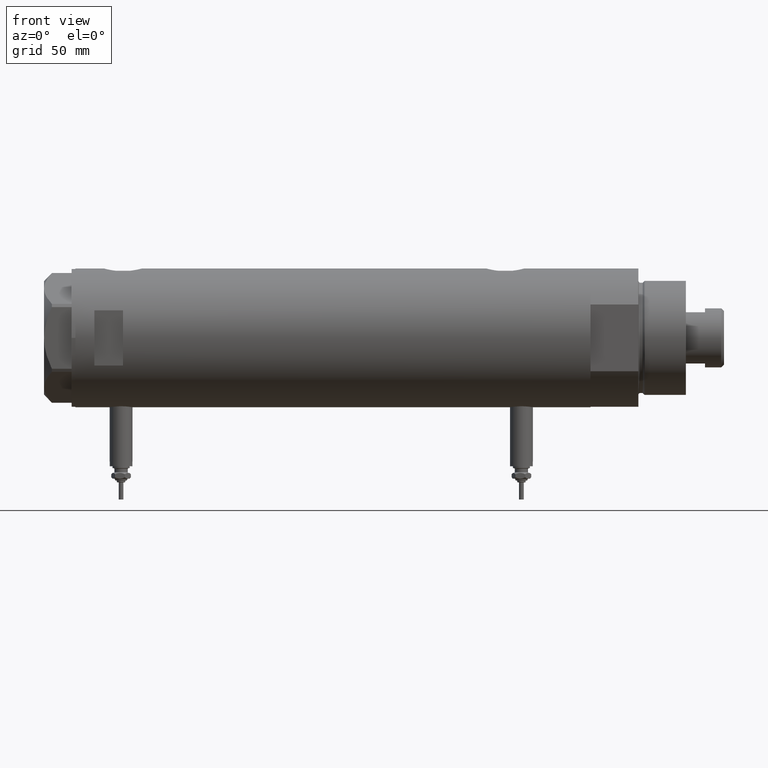
[diagram: clean part render]
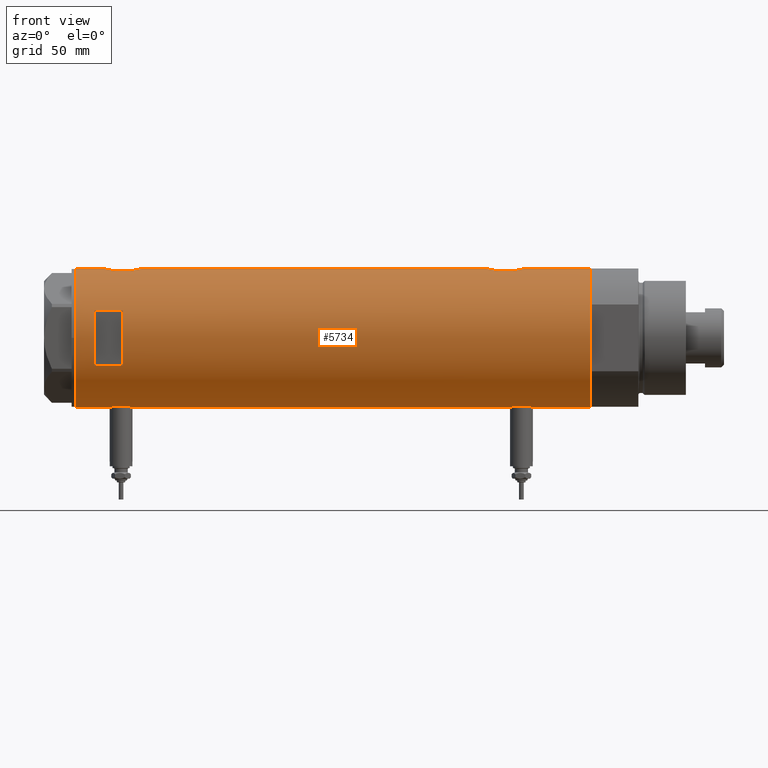
[diagram: same view with one face highlighted and labeled with its STEP entity id]
A machine part, front view. The second image highlights one B-rep face of the part: STEP entity #5734.
In plain terms, the highlighted cylindrical surface (partial cylindrical patch) has radius 36.5 mm, axis along (-1, -0, 0).
Its self-contained STEP definition (entity closure, byte-faithful):
#10 = CARTESIAN_POINT ( 'NONE',  ( 36.12724769814495573, -5.207618053557754756, 118.9406412048846846 ) ) ;
#54 = EDGE_CURVE ( 'NONE', #1480, #5323, #421, .T. ) ;
#56 = VECTOR ( 'NONE', #5036, 1000.000000000000000 ) ;
#58 = CARTESIAN_POINT ( 'NONE',  ( -36.50000000000000000, 4.469960816887838430E-15, -135.4000000000000057 ) ) ;
#76 = CARTESIAN_POINT ( 'NONE',  ( -36.50000000000000000, 4.469960816887838430E-15, -135.4000000000000057 ) ) ;
#79 = EDGE_CURVE ( 'NONE', #1117, #3911, #4368, .T. ) ;
#86 = CARTESIAN_POINT ( 'NONE',  ( 35.52320828895289395, -8.411622242316134646, 104.9022713405538667 ) ) ;
#87 = CARTESIAN_POINT ( 'NONE',  ( -36.39621039793029666, -2.776267550998806843, 117.0143075310677716 ) ) ;
#92 = CARTESIAN_POINT ( 'NONE',  ( 35.72742963626381396, -7.471989379615407323, -97.25062260412774151 ) ) ;
#99 = DIRECTION ( 'NONE',  ( -0.000000000000000000, 0.000000000000000000, -1.000000000000000000 ) ) ;
#109 = CARTESIAN_POINT ( 'NONE',  ( -35.96816095843705341, -6.208699946936198977, 110.5750362287220838 ) ) ;
#147 = CARTESIAN_POINT ( 'NONE',  ( 36.18850502651835654, -4.779575967213809840, -99.39779152890149305 ) ) ;
#172 = CARTESIAN_POINT ( 'NONE',  ( -36.26616882068471170, -4.135065845178865551, 116.1041505594009635 ) ) ;
#180 = CARTESIAN_POINT ( 'NONE',  ( -36.01675918113430441, -5.920026275461277798, -101.1143955651789383 ) ) ;
#186 = VERTEX_POINT ( 'NONE', #3992 ) ;
#216 = CARTESIAN_POINT ( 'NONE',  ( -36.19599073318030236, -4.702920041824403263, -94.97846168323421523 ) ) ;
#233 = EDGE_CURVE ( 'NONE', #3409, #4420, #5372, .T. ) ;
#330 = CARTESIAN_POINT ( 'NONE',  ( -36.43335814606993495, -2.212659578761325463, -93.25123600830492876 ) ) ;
#338 = CARTESIAN_POINT ( 'NONE',  ( 36.21540437201188922, -4.554727782332258279, 119.3059762908862353 ) ) ;
#373 = VECTOR ( 'NONE', #2858, 1000.000000000000000 ) ;
#407 = CARTESIAN_POINT ( 'NONE',  ( 36.50000000000000000, 0.000000000000000000, -135.4000000000000057 ) ) ;
#421 = B_SPLINE_CURVE_WITH_KNOTS ( 'NONE', 3,
 ( #3735, #511, #992, #4658, #3817, #2430, #1085, #5563, #1931, #3766, #5532, #3252, #5201, #599, #1900, #532, #5079, #2457 ),
 .UNSPECIFIED., .F., .F.,
 ( 4, 2, 2, 2, 2, 2, 2, 2, 4 ),
 ( 0.01190956515753145012, 0.01339852714138290227, 0.01488748912523435441, 0.01637645110908580656, 0.01712093210101153090, 0.01786541309293725871, 0.01935437507678870739, 0.02084333706064015260, 0.02382126102834301526 ),
 .UNSPECIFIED. ) ;
#440 = CARTESIAN_POINT ( 'NONE',  ( 36.50000000000000000, 0.000000000000000000, -135.4000000000000057 ) ) ;
#446 = CARTESIAN_POINT ( 'NONE',  ( -35.98855750525641639, -6.088954600884530777, 109.9756977384983543 ) ) ;
#511 = CARTESIAN_POINT ( 'NONE',  ( 36.50000000000000711, -0.4962708696651116913, -80.60000000000000853 ) ) ;
#529 = CARTESIAN_POINT ( 'NONE',  ( 35.39794035667548400, -8.909777761736840773, 105.7504584091054767 ) ) ;
#532 = CARTESIAN_POINT ( 'NONE',  ( 35.52323553852023963, -8.411295122831250026, -85.10247607048908947 ) ) ;
#536 = EDGE_CURVE ( 'NONE', #186, #4674, #3697, .T. ) ;
#575 = CIRCLE ( 'NONE', #1357, 36.50000000000000000 ) ;
#595 = CARTESIAN_POINT ( 'NONE',  ( -36.21356728133255842, -4.566014386638764577, 115.6726266076474587 ) ) ;
#599 = CARTESIAN_POINT ( 'NONE',  ( 35.79638309643555516, -7.141827709208434349, -83.58298073030449871 ) ) ;
#607 = CARTESIAN_POINT ( 'NONE',  ( 35.29999999999999716, -9.282241108697837362, 106.6797849524523656 ) ) ;
#626 = EDGE_CURVE ( 'NONE', #1997, #699, #5885, .T. ) ;
#627 = CARTESIAN_POINT ( 'NONE',  ( -36.44621655743049615, -2.016281777336074832, -105.0298297669911562 ) ) ;
#638 = FACE_OUTER_BOUND ( 'NONE', #2682, .T. ) ;
#648 = CARTESIAN_POINT ( 'NONE',  ( -36.14410773716529235, -5.085921866747754372, 115.0383587842047035 ) ) ;
#655 = CARTESIAN_POINT ( 'NONE',  ( -36.36635911126388265, -3.125815113635437292, -104.5160560040790330 ) ) ;
#666 = DIRECTION ( 'NONE',  ( 1.000000000000000000, 0.000000000000000000, 0.000000000000000000 ) ) ;
#687 = CARTESIAN_POINT ( 'NONE',  ( -36.30107494031872051, -3.820993528321233068, -94.13693846463692694 ) ) ;
#699 = VERTEX_POINT ( 'NONE', #5219 ) ;
#711 = CARTESIAN_POINT ( 'NONE',  ( -36.02823773219768810, -5.849994928883552880, -101.3095510148563960 ) ) ;
#743 = CARTESIAN_POINT ( 'NONE',  ( -36.14410773716529235, -5.085921866747754372, -95.46164121579526807 ) ) ;
#791 = DIRECTION ( 'NONE',  ( 0.000000000000000000, 0.000000000000000000, 1.000000000000000000 ) ) ;
#837 = CARTESIAN_POINT ( 'NONE',  ( -36.06543684817881257, -5.617774235967367247, 114.1695444797170182 ) ) ;
#871 = CARTESIAN_POINT ( 'NONE',  ( -36.36635911126388265, -3.125815113635437292, 105.9839439959209955 ) ) ;
#899 = CARTESIAN_POINT ( 'NONE',  ( -36.01675918113430441, -5.920026275461277798, 109.3856044348210759 ) ) ;
#906 = CARTESIAN_POINT ( 'NONE',  ( 35.79638309643555516, -7.141827709208434349, 117.4170192696954445 ) ) ;
#988 = CARTESIAN_POINT ( 'NONE',  ( -36.43335814606993495, -2.212659578761325463, 117.2487639916951139 ) ) ;
#992 = CARTESIAN_POINT ( 'NONE',  ( 36.48988302519020266, -0.9927202255321166957, -80.63673010588695433 ) ) ;
#1011 = CARTESIAN_POINT ( 'NONE',  ( 35.69273631926343882, -7.635692914629149008, 103.9379980434851234 ) ) ;
#1039 = VECTOR ( 'NONE', #1897, 1000.000000000000000 ) ;
#1045 = CARTESIAN_POINT ( 'NONE',  ( 36.41856252531823657, -2.482507212621166470, 100.7004348715349380 ) ) ;
#1051 = CARTESIAN_POINT ( 'NONE',  ( 36.00068527486601511, -6.030855700422090848, -98.59201327127351533 ) ) ;
#1085 = CARTESIAN_POINT ( 'NONE',  ( 36.29582892817134621, -3.881628320031159873, -81.37065565465007921 ) ) ;
#1089 = CARTESIAN_POINT ( 'NONE',  ( -36.30176144752229561, -3.814344296723636951, -104.0680170195025624 ) ) ;
#1114 = CARTESIAN_POINT ( 'NONE',  ( -36.01639592019625979, -5.922235714778421034, -97.09203197573086186 ) ) ;
#1117 = VERTEX_POINT ( 'NONE', #4386 ) ;
#1152 = FACE_BOUND ( 'NONE', #3325, .T. ) ;
#1191 = VERTEX_POINT ( 'NONE', #607 ) ;
#1194 = ORIENTED_EDGE ( 'NONE', *, *, #536, .T. ) ;
#1227 = EDGE_CURVE ( 'NONE', #5914, #1997, #1709, .T. ) ;
#1322 = DIRECTION ( 'NONE',  ( -0.000000000000000000, -0.000000000000000000, -1.000000000000000000 ) ) ;
#1330 = CARTESIAN_POINT ( 'NONE',  ( -36.44621655743049615, -2.016281777336074832, 105.4701702330088438 ) ) ;
#1353 = DIRECTION ( 'NONE',  ( 0.000000000000000000, 0.000000000000000000, 1.000000000000000000 ) ) ;
#1357 = AXIS2_PLACEMENT_3D ( 'NONE', #5039, #1353, #1382 ) ;
#1364 = DIRECTION ( 'NONE',  ( 1.000000000000000000, 0.000000000000000000, 0.000000000000000000 ) ) ;
#1370 = CARTESIAN_POINT ( 'NONE',  ( 14.49137674618942739, -33.50000000000000000, 125.3999999999999773 ) ) ;
#1378 = CARTESIAN_POINT ( 'NONE',  ( 35.29999999999999716, -9.282241108697837362, -135.4000000000000057 ) ) ;
#1382 = DIRECTION ( 'NONE',  ( -1.000000000000000000, 0.000000000000000000, 0.000000000000000000 ) ) ;
#1396 = CARTESIAN_POINT ( 'NONE',  ( 35.39807338191549491, -8.909271871950329214, 115.0508038273278402 ) ) ;
#1416 = CARTESIAN_POINT ( 'NONE',  ( -36.02782481185206365, -5.852531070448506512, 113.6027700895219112 ) ) ;
#1426 = DIRECTION ( 'NONE',  ( 0.000000000000000000, 0.000000000000000000, 1.000000000000000000 ) ) ;
#1435 = CARTESIAN_POINT ( 'NONE',  ( 14.49137674618942739, -33.50000000000000000, -135.4000000000000057 ) ) ;
#1451 = CARTESIAN_POINT ( 'NONE',  ( 35.79656810172926384, -7.133411935499478496, -97.61254878557674886 ) ) ;
#1468 = CARTESIAN_POINT ( 'NONE',  ( 35.29999999999999716, -9.282241108697837362, -86.87978495245235422 ) ) ;
#1474 = CARTESIAN_POINT ( 'NONE',  ( 35.83108131285856501, -6.958268797611358636, 103.2136921662717697 ) ) ;
#1477 = CARTESIAN_POINT ( 'NONE',  ( 36.29527920868844859, -3.886508670267145416, -99.82716275830860297 ) ) ;
#1480 = VERTEX_POINT ( 'NONE', #4275 ) ;
#1498 = CARTESIAN_POINT ( 'NONE',  ( 36.34184199234172041, -3.427106516421255744, 100.9925908631996663 ) ) ;
#1513 = VERTEX_POINT ( 'NONE', #3597 ) ;
#1534 = AXIS2_PLACEMENT_3D ( 'NONE', #3623, #5021, #1364 ) ;
#1539 = CARTESIAN_POINT ( 'NONE',  ( -36.50000000000000000, 4.469960816887838430E-15, -135.4000000000000057 ) ) ;
#1571 = CARTESIAN_POINT ( 'NONE',  ( -36.26692673949090562, -4.128477002029503851, -103.8099998743216474 ) ) ;
#1618 = VECTOR ( 'NONE', #791, 1000.000000000000000 ) ;
#1651 = CARTESIAN_POINT ( 'NONE',  ( 36.50000000000000000, 0.000000000000000000, 100.4000000000000057 ) ) ;
#1690 = CARTESIAN_POINT ( 'NONE',  ( 36.50000000000000000, 0.000000000000000000, -100.5999999999999801 ) ) ;
#1709 = CIRCLE ( 'NONE', #5059, 36.50000000000000000 ) ;
#1729 = CARTESIAN_POINT ( 'NONE',  ( 36.00092304812866217, -6.029438422680412302, 118.3930815557365008 ) ) ;
#1757 = CARTESIAN_POINT ( 'NONE',  ( -36.39621039793029666, -2.776267550998806843, -93.48569246893222839 ) ) ;
#1782 = CARTESIAN_POINT ( 'NONE',  ( -36.49315367594273596, -0.8144497809045447845, 105.1896021444524507 ) ) ;
#1811 = CARTESIAN_POINT ( 'NONE',  ( -36.06605150775667568, -5.613853192123348101, 108.6223431172745961 ) ) ;
#1821 = CARTESIAN_POINT ( 'NONE',  ( 36.44931971524465553, -1.985988150549293341, 120.2136686053176220 ) ) ;
#1839 = CARTESIAN_POINT ( 'NONE',  ( -35.96794010939611752, -6.209972807992079069, 112.2155554899135836 ) ) ;
#1897 = DIRECTION ( 'NONE',  ( 0.000000000000000000, 0.000000000000000000, 1.000000000000000000 ) ) ;
#1900 = CARTESIAN_POINT ( 'NONE',  ( 35.72583162417570435, -7.484316398521980496, -83.94957356280495731 ) ) ;
#1925 = CARTESIAN_POINT ( 'NONE',  ( 35.72742963626381396, -7.471989379615407323, 103.7493773958722585 ) ) ;
#1931 = CARTESIAN_POINT ( 'NONE',  ( 36.18674680775578167, -4.776679548204626258, -81.81107683068751157 ) ) ;
#1942 = DIRECTION ( 'NONE',  ( 1.000000000000000000, 0.000000000000000000, 0.000000000000000000 ) ) ;
#1986 = CARTESIAN_POINT ( 'NONE',  ( 36.44881677724178104, -1.995085670027227032, -100.4118034536946169 ) ) ;
#1997 = VERTEX_POINT ( 'NONE', #5913 ) ;
#2012 = CARTESIAN_POINT ( 'NONE',  ( -36.50000000000000000, 1.603939656238031057E-15, 117.6500000000000057 ) ) ;
#2022 = CARTESIAN_POINT ( 'NONE',  ( -35.96816095843705341, -6.208699946936198977, -99.92496377127785934 ) ) ;
#2043 = EDGE_CURVE ( 'NONE', #4626, #2565, #3733, .T. ) ;
#2052 = CARTESIAN_POINT ( 'NONE',  ( -35.98821803976956346, -6.090959022952117330, -97.68426116850579888 ) ) ;
#2101 = EDGE_CURVE ( 'NONE', #2565, #3911, #3662, .T. ) ;
#2106 = CARTESIAN_POINT ( 'NONE',  ( -36.36656776002988778, -3.137002187003158582, -93.67863590726369694 ) ) ;
#2111 = CIRCLE ( 'NONE', #1534, 36.50000000000000000 ) ;
#2117 = DIRECTION ( 'NONE',  ( 0.000000000000000000, 0.000000000000000000, 1.000000000000000000 ) ) ;
#2279 = CARTESIAN_POINT ( 'NONE',  ( -14.49137674618942739, -33.50000000000000000, -135.4000000000000057 ) ) ;
#2293 = CARTESIAN_POINT ( 'NONE',  ( 35.93373217836897737, -6.415110096330620237, 118.0870426635508892 ) ) ;
#2312 = CARTESIAN_POINT ( 'NONE',  ( -36.19666146462960654, -4.704890678739094945, 107.2657014048921553 ) ) ;
#2339 = CARTESIAN_POINT ( 'NONE',  ( 35.29999999999999716, -9.282241108697837362, 114.1202150475476316 ) ) ;
#2342 = CARTESIAN_POINT ( 'NONE',  ( 35.39794035667548400, -8.909777761736840773, -95.24954159089452332 ) ) ;
#2359 = EDGE_CURVE ( 'NONE', #186, #4645, #4892, .T. ) ;
#2364 = CARTESIAN_POINT ( 'NONE',  ( -36.16125812922425098, -4.962923794285024393, 115.2044608591076269 ) ) ;
#2369 = CARTESIAN_POINT ( 'NONE',  ( 35.83108131285856501, -6.958268797611358636, -97.78630783372824453 ) ) ;
#2396 = CARTESIAN_POINT ( 'NONE',  ( 36.00068527486601511, -6.030855700422090848, 102.4079867287264705 ) ) ;
#2426 = CARTESIAN_POINT ( 'NONE',  ( -36.46417279006304568, -1.628689148039109247, 117.4375393869382123 ) ) ;
#2430 = CARTESIAN_POINT ( 'NONE',  ( 36.34247810649306132, -3.420510937483959513, -81.19013481598273074 ) ) ;
#2450 = EDGE_CURVE ( 'NONE', #4420, #5263, #3820, .T. ) ;
#2451 = CARTESIAN_POINT ( 'NONE',  ( -36.50000000000000000, 4.469960816887838430E-15, -135.4000000000000057 ) ) ;
#2452 = CARTESIAN_POINT ( 'NONE',  ( -36.47262891311153510, -1.427622242603855396, 117.4882462921170259 ) ) ;
#2457 = CARTESIAN_POINT ( 'NONE',  ( 35.29999999999999716, -9.282241108697837362, -86.87978495245235422 ) ) ;
#2462 = CARTESIAN_POINT ( 'NONE',  ( -36.09582946723050867, -5.421573071064194060, -102.2360827837048731 ) ) ;
#2490 = ORIENTED_EDGE ( 'NONE', *, *, #626, .F. ) ;
#2491 = CARTESIAN_POINT ( 'NONE',  ( -36.35061318816141096, -3.303361544904982239, -104.4096404194302039 ) ) ;
#2524 = CARTESIAN_POINT ( 'NONE',  ( -35.98855750525641639, -6.088954600884530777, -100.5243022615016883 ) ) ;
#2550 = CARTESIAN_POINT ( 'NONE',  ( -36.19666146462960654, -4.704890678739094945, -103.2342985951078447 ) ) ;
#2559 = CARTESIAN_POINT ( 'NONE',  ( -36.50000000000000000, 1.603939656238031057E-15, 117.6500000000000057 ) ) ;
#2565 = VERTEX_POINT ( 'NONE', #3938 ) ;
#2571 = AXIS2_PLACEMENT_3D ( 'NONE', #3127, #4956, #3160 ) ;
#2572 = ORIENTED_EDGE ( 'NONE', *, *, #5042, .F. ) ;
#2612 = EDGE_CURVE ( 'NONE', #1513, #2982, #3883, .T. ) ;
#2668 = CARTESIAN_POINT ( 'NONE',  ( -36.50000000000000000, 1.603939656238031057E-15, -92.84999999999999432 ) ) ;
#2682 = EDGE_LOOP ( 'NONE', ( #4008, #5018, #3773, #4907, #5839, #4838, #5515, #3978, #2906, #3108, #1194, #3121, #4607, #4660, #2725, #5384 ) ) ;
#2695 = VECTOR ( 'NONE', #4462, 1000.000000000000000 ) ;
#2713 = CARTESIAN_POINT ( 'NONE',  ( -36.35061318816141096, -3.303361544904982239, 106.0903595805698245 ) ) ;
#2721 = CARTESIAN_POINT ( 'NONE',  ( 35.52323553852023963, -8.411295122831250026, 115.8975239295108253 ) ) ;
#2725 = ORIENTED_EDGE ( 'NONE', *, *, #4841, .F. ) ;
#2738 = CARTESIAN_POINT ( 'NONE',  ( -35.99695583620881933, -6.039273428153905776, 109.7777555501224214 ) ) ;
#2799 = CARTESIAN_POINT ( 'NONE',  ( 35.29999999999999716, -9.282241108697837362, -135.4000000000000057 ) ) ;
#2850 = CARTESIAN_POINT ( 'NONE',  ( 35.93363298843768661, -6.415574104180976178, 102.7134852711111108 ) ) ;
#2858 = DIRECTION ( 'NONE',  ( 0.000000000000000000, 0.000000000000000000, 1.000000000000000000 ) ) ;
#2861 = B_SPLINE_CURVE_WITH_KNOTS ( 'NONE', 3,
 ( #4653, #529, #86, #1011, #1925, #3761, #1474, #2850, #2396, #4683, #3786, #5612, #1498, #1045, #2880, #3514, #2997, #1651 ),
 .UNSPECIFIED., .F., .F.,
 ( 4, 2, 2, 2, 2, 2, 2, 2, 4 ),
 ( -0.01189883390545606531, -0.008924125429092034240, -0.008180448310001031675, -0.007436771190910029979, -0.005949416952728023983, -0.004462062714546017987, -0.002974708476364010257, -0.001487354238182005128, 1.734723475976807094E-18 ),
 .UNSPECIFIED. ) ;
#2874 = EDGE_CURVE ( 'NONE', #1191, #4645, #5560, .T. ) ;
#2880 = CARTESIAN_POINT ( 'NONE',  ( 36.44881677724178104, -1.995085670027227032, 100.5881965463053263 ) ) ;
#2881 = CARTESIAN_POINT ( 'NONE',  ( -36.50000000000001421, -0.4136690418839317762, 117.6500000000000341 ) ) ;
#2885 = CARTESIAN_POINT ( 'NONE',  ( 36.12792682573228831, -5.214735277442335004, -99.14693117988699100 ) ) ;
#2906 = ORIENTED_EDGE ( 'NONE', *, *, #2874, .T. ) ;
#2910 = CARTESIAN_POINT ( 'NONE',  ( -36.19599073318030236, -4.702920041824403263, 115.5215383167658132 ) ) ;
#2914 = CARTESIAN_POINT ( 'NONE',  ( 35.69273631926343882, -7.635692914629149008, -97.06200195651487661 ) ) ;
#2934 = CARTESIAN_POINT ( 'NONE',  ( -36.49297138689434661, -0.8222528563518530786, 117.6093311205343781 ) ) ;
#2982 = VERTEX_POINT ( 'NONE', #2668 ) ;
#2997 = CARTESIAN_POINT ( 'NONE',  ( 36.50000000000000711, -0.5031001875915692700, 100.4000000000000341 ) ) ;
#3030 = CARTESIAN_POINT ( 'NONE',  ( -36.40915499150419521, -2.580495338846545472, -104.7960501335547860 ) ) ;
#3091 = EDGE_CURVE ( 'NONE', #3271, #5914, #5521, .T. ) ;
#3108 = ORIENTED_EDGE ( 'NONE', *, *, #2359, .F. ) ;
#3121 = ORIENTED_EDGE ( 'NONE', *, *, #3985, .F. ) ;
#3127 = CARTESIAN_POINT ( 'NONE',  ( 0.000000000000000000, 0.000000000000000000, -135.4000000000000057 ) ) ;
#3160 = DIRECTION ( 'NONE',  ( 1.000000000000000000, 0.000000000000000000, 0.000000000000000000 ) ) ;
#3163 = CARTESIAN_POINT ( 'NONE',  ( -36.40915499150419521, -2.580495338846545472, 105.7039498664452566 ) ) ;
#3196 = CARTESIAN_POINT ( 'NONE',  ( -36.46614432713124643, -1.622933015999963313, 105.3503340261315202 ) ) ;
#3247 = CARTESIAN_POINT ( 'NONE',  ( -36.50000000000000000, 4.469960493350315609E-15, 105.1499999999999915 ) ) ;
#3252 = CARTESIAN_POINT ( 'NONE',  ( 36.00092304812866217, -6.029438422680412302, -82.60691844426345654 ) ) ;
#3265 = VECTOR ( 'NONE', #1426, 1000.000000000000000 ) ;
#3271 = VERTEX_POINT ( 'NONE', #4756 ) ;
#3281 = CARTESIAN_POINT ( 'NONE',  ( 36.41856252531823657, -2.482507212621166470, -100.2995651284649909 ) ) ;
#3325 = EDGE_LOOP ( 'NONE', ( #2572, #2490, #3481, #4033 ) ) ;
#3331 = VECTOR ( 'NONE', #1322, 1000.000000000000000 ) ;
#3347 = EDGE_CURVE ( 'NONE', #4626, #1513, #4648, .T. ) ;
#3404 = CARTESIAN_POINT ( 'NONE',  ( -35.99659093586380010, -6.041447834568799635, -97.48577587985174375 ) ) ;
#3409 = VERTEX_POINT ( 'NONE', #4876 ) ;
#3430 = CARTESIAN_POINT ( 'NONE',  ( -36.21356728133255842, -4.566014386638764577, -94.82737339235254126 ) ) ;
#3463 = CARTESIAN_POINT ( 'NONE',  ( -36.39558535855674393, -2.764807686268001774, -104.7089411854560979 ) ) ;
#3481 = ORIENTED_EDGE ( 'NONE', *, *, #1227, .F. ) ;
#3495 = CARTESIAN_POINT ( 'NONE',  ( -35.96087392089862789, -6.250243747806517369, -98.69082509223817112 ) ) ;
#3514 = CARTESIAN_POINT ( 'NONE',  ( 36.48960339336947101, -1.002724032967601708, 100.4377513402650379 ) ) ;
#3555 = CARTESIAN_POINT ( 'NONE',  ( -36.50000000000000000, 1.603939656238031057E-15, -92.84999999999999432 ) ) ;
#3597 = CARTESIAN_POINT ( 'NONE',  ( -36.50000000000000000, 4.469960493350315609E-15, -105.3499999999999943 ) ) ;
#3622 = CARTESIAN_POINT ( 'NONE',  ( -36.49297138689434661, -0.8222528563518530786, -92.89066887946567874 ) ) ;
#3623 = CARTESIAN_POINT ( 'NONE',  ( 0.000000000000000000, 0.000000000000000000, 135.4000000000000057 ) ) ;
#3629 = CARTESIAN_POINT ( 'NONE',  ( 36.41918031349423757, -2.473644131148923009, 120.1018834546319027 ) ) ;
#3647 = CARTESIAN_POINT ( 'NONE',  ( -36.02823773219768810, -5.849994928883552880, 109.1904489851435613 ) ) ;
#3662 = LINE ( 'NONE', #407, #1618 ) ;
#3685 = CARTESIAN_POINT ( 'NONE',  ( 36.09633718678917802, -5.417295330713078449, 118.8091486734521141 ) ) ;
#3697 = LINE ( 'NONE', #440, #5446 ) ;
#3702 = CARTESIAN_POINT ( 'NONE',  ( -36.30176144752229561, -3.814344296723636951, 106.4319829804974518 ) ) ;
#3728 = EDGE_CURVE ( 'NONE', #1480, #4119, #4216, .T. ) ;
#3731 = CARTESIAN_POINT ( 'NONE',  ( -35.96095902952617251, -6.249754054240900913, 110.9834123457953012 ) ) ;
#3733 = CIRCLE ( 'NONE', #2571, 36.50000000000000000 ) ;
#3735 = CARTESIAN_POINT ( 'NONE',  ( 36.50000000000000000, 4.344614706140975428E-19, -80.59999999999999432 ) ) ;
#3748 = DIRECTION ( 'NONE',  ( 0.000000000000000000, 0.000000000000000000, 1.000000000000000000 ) ) ;
#3760 = VECTOR ( 'NONE', #5251, 1000.000000000000000 ) ;
#3761 = CARTESIAN_POINT ( 'NONE',  ( 35.79656810172926384, -7.133411935499478496, 103.3874512144232511 ) ) ;
#3766 = CARTESIAN_POINT ( 'NONE',  ( 36.12724769814495573, -5.207618053557754756, -82.05935879511534381 ) ) ;
#3773 = ORIENTED_EDGE ( 'NONE', *, *, #2101, .T. ) ;
#3786 = CARTESIAN_POINT ( 'NONE',  ( 36.18850502651835654, -4.779575967213809840, 101.6022084710984501 ) ) ;
#3817 = CARTESIAN_POINT ( 'NONE',  ( 36.41918031349423757, -2.473644131148923009, -80.89811654536808305 ) ) ;
#3820 = LINE ( 'NONE', #1539, #373 ) ;
#3842 = CARTESIAN_POINT ( 'NONE',  ( -36.36656776002988778, -3.137002187003158582, 116.8213640927363315 ) ) ;
#3853 = CARTESIAN_POINT ( 'NONE',  ( -35.96095902952617251, -6.249754054240900913, -99.51658765420468455 ) ) ;
#3879 = CARTESIAN_POINT ( 'NONE',  ( -36.46614432713124643, -1.622933015999963313, -105.1496659738684798 ) ) ;
#3883 = B_SPLINE_CURVE_WITH_KNOTS ( 'NONE', 3,
 ( #3908, #5732, #5205, #3879, #627, #3030, #3463, #655, #2491, #1089, #1571, #2550, #4747, #2462, #4300, #711, #180, #5316, #2524, #2022, #3853, #3495, #5232, #2052, #3404, #1114, #4864, #5704, #4387, #743, #4332, #216, #3430, #5259, #687, #2106, #1757, #330, #5477, #4091, #5891, #3622, #5448, #3555 ),
 .UNSPECIFIED., .F., .F.,
 ( 4, 2, 2, 2, 2, 2, 2, 2, 2, 2, 2, 2, 2, 2, 2, 2, 2, 2, 2, 2, 2, 4 ),
 ( 0.01957644481942643136, 0.02079966591703043266, 0.02202288701463443049, 0.02263449756343642941, 0.02324610811223842832, 0.02446932920984242615, 0.02569255030744642398, 0.02691577140505042529, 0.02752738195385242420, 0.02813899250265442659, 0.02936221360025846605, 0.03058543469786250205, 0.03119704524666452178, 0.03180865579546654498, 0.03303187689307057751, 0.03364348744187262152, 0.03425509799067465166, 0.03547831908827869807, 0.03670154018588274447, 0.03731315073468477461, 0.03792476128348679781, 0.03914798238109084422 ),
 .UNSPECIFIED. ) ;
#3908 = CARTESIAN_POINT ( 'NONE',  ( -36.50000000000000000, 4.469960493350315609E-15, -105.3499999999999943 ) ) ;
#3911 = VERTEX_POINT ( 'NONE', #1690 ) ;
#3938 = CARTESIAN_POINT ( 'NONE',  ( 36.50000000000000000, 0.000000000000000000, -135.4000000000000057 ) ) ;
#3978 = ORIENTED_EDGE ( 'NONE', *, *, #4884, .F. ) ;
#3985 = EDGE_CURVE ( 'NONE', #5263, #4674, #2111, .T. ) ;
#3992 = CARTESIAN_POINT ( 'NONE',  ( 36.50000000000000000, 4.344614706140975428E-19, 120.3999999999999915 ) ) ;
#4008 = ORIENTED_EDGE ( 'NONE', *, *, #3347, .F. ) ;
#4033 = ORIENTED_EDGE ( 'NONE', *, *, #3091, .F. ) ;
#4090 = CARTESIAN_POINT ( 'NONE',  ( -36.26692673949090562, -4.128477002029503851, 106.6900001256783526 ) ) ;
#4091 = CARTESIAN_POINT ( 'NONE',  ( -36.46417279006304568, -1.628689148039109247, -93.06246061306185879 ) ) ;
#4119 = VERTEX_POINT ( 'NONE', #4605 ) ;
#4120 = CARTESIAN_POINT ( 'NONE',  ( -36.16096637594732499, -4.968588355849258953, 107.5866550718223920 ) ) ;
#4129 = CARTESIAN_POINT ( 'NONE',  ( 35.72583162417570435, -7.484316398521980496, 117.0504264371949716 ) ) ;
#4182 = CARTESIAN_POINT ( 'NONE',  ( 35.93363298843768661, -6.415574104180976178, -98.28651472888890339 ) ) ;
#4211 = CARTESIAN_POINT ( 'NONE',  ( 36.50000000000000000, 0.000000000000000000, -100.5999999999999801 ) ) ;
#4216 = LINE ( 'NONE', #5206, #3265 ) ;
#4233 = EDGE_CURVE ( 'NONE', #1117, #5323, #5433, .T. ) ;
#4275 = CARTESIAN_POINT ( 'NONE',  ( 36.50000000000000000, 4.344614706140975428E-19, -80.59999999999999432 ) ) ;
#4297 = CARTESIAN_POINT ( 'NONE',  ( 35.29999999999999716, -9.282241108697837362, -94.32021504754762020 ) ) ;
#4300 = CARTESIAN_POINT ( 'NONE',  ( -36.06605150775667568, -5.613853192123348101, -101.8776568827254465 ) ) ;
#4332 = CARTESIAN_POINT ( 'NONE',  ( -36.16125812922425098, -4.962923794285024393, -95.29553914089241573 ) ) ;
#4368 = B_SPLINE_CURVE_WITH_KNOTS ( 'NONE', 3,
 ( #4297, #2342, #5592, #2914, #92, #1451, #2369, #4182, #1051, #2885, #147, #1477, #4744, #3281, #1986, #5108, #5616, #4211 ),
 .UNSPECIFIED., .F., .F.,
 ( 4, 2, 2, 2, 2, 2, 2, 2, 4 ),
 ( -0.01189883390545606531, -0.008924125429092034240, -0.008180448310001031675, -0.007436771190910029979, -0.005949416952728023983, -0.004462062714546017987, -0.002974708476364010257, -0.001487354238182005128, 1.734723475976807094E-18 ),
 .UNSPECIFIED. ) ;
#4386 = CARTESIAN_POINT ( 'NONE',  ( 35.29999999999999716, -9.282241108697837362, -94.32021504754762020 ) ) ;
#4387 = CARTESIAN_POINT ( 'NONE',  ( -36.09514898390870030, -5.426114745500164815, -95.97161347053859970 ) ) ;
#4420 = VERTEX_POINT ( 'NONE', #2559 ) ;
#4433 = AXIS2_PLACEMENT_3D ( 'NONE', #5240, #2117, #666 ) ;
#4462 = DIRECTION ( 'NONE',  ( 0.000000000000000000, 0.000000000000000000, 1.000000000000000000 ) ) ;
#4605 = CARTESIAN_POINT ( 'NONE',  ( 36.50000000000000000, 0.000000000000000000, 100.4000000000000057 ) ) ;
#4607 = ORIENTED_EDGE ( 'NONE', *, *, #2450, .F. ) ;
#4626 = VERTEX_POINT ( 'NONE', #58 ) ;
#4645 = VERTEX_POINT ( 'NONE', #2339 ) ;
#4648 = LINE ( 'NONE', #76, #5173 ) ;
#4653 = CARTESIAN_POINT ( 'NONE',  ( 35.29999999999999716, -9.282241108697837362, 106.6797849524523656 ) ) ;
#4658 = CARTESIAN_POINT ( 'NONE',  ( 36.44931971524465553, -1.985988150549293341, -80.78633139468232116 ) ) ;
#4660 = ORIENTED_EDGE ( 'NONE', *, *, #233, .F. ) ;
#4674 = VERTEX_POINT ( 'NONE', #5103 ) ;
#4683 = CARTESIAN_POINT ( 'NONE',  ( 36.12792682573228831, -5.214735277442335004, 101.8530688201130090 ) ) ;
#4716 = CARTESIAN_POINT ( 'NONE',  ( -36.44454782745417276, -2.020757099930494682, 117.3178586442099913 ) ) ;
#4744 = CARTESIAN_POINT ( 'NONE',  ( 36.34184199234172041, -3.427106516421255744, -100.0074091368003337 ) ) ;
#4747 = CARTESIAN_POINT ( 'NONE',  ( -36.16096637594732499, -4.968588355849258953, -102.9133449281775938 ) ) ;
#4756 = CARTESIAN_POINT ( 'NONE',  ( 14.49137674618942739, -33.50000000000000000, 110.3999999999999773 ) ) ;
#4768 = CARTESIAN_POINT ( 'NONE',  ( -36.30107494031872051, -3.820993528321233068, 116.3630615353631015 ) ) ;
#4838 = ORIENTED_EDGE ( 'NONE', *, *, #54, .F. ) ;
#4841 = EDGE_CURVE ( 'NONE', #2982, #3409, #5128, .T. ) ;
#4864 = CARTESIAN_POINT ( 'NONE',  ( -36.02782481185206365, -5.852531070448506512, -96.89722991047811718 ) ) ;
#4876 = CARTESIAN_POINT ( 'NONE',  ( -36.50000000000000000, 4.469960493350315609E-15, 105.1499999999999915 ) ) ;
#4884 = EDGE_CURVE ( 'NONE', #1191, #4119, #2861, .T. ) ;
#4892 = B_SPLINE_CURVE_WITH_KNOTS ( 'NONE', 3,
 ( #5000, #5513, #5925, #1821, #3629, #5896, #5025, #338, #5455, #10, #3685, #1729, #2293, #906, #4129, #2721, #1396, #4968 ),
 .UNSPECIFIED., .F., .F.,
 ( 4, 2, 2, 2, 2, 2, 2, 2, 4 ),
 ( 0.01190956515753145012, 0.01339852714138290227, 0.01488748912523435441, 0.01637645110908580656, 0.01712093210101153090, 0.01786541309293725871, 0.01935437507678870739, 0.02084333706064015260, 0.02382126102834301526 ),
 .UNSPECIFIED. ) ;
#4907 = ORIENTED_EDGE ( 'NONE', *, *, #79, .F. ) ;
#4956 = DIRECTION ( 'NONE',  ( 0.000000000000000000, 0.000000000000000000, 1.000000000000000000 ) ) ;
#4959 = CARTESIAN_POINT ( 'NONE',  ( -35.98821803976956346, -6.090959022952117330, 112.8157388314941869 ) ) ;
#4968 = CARTESIAN_POINT ( 'NONE',  ( 35.29999999999999716, -9.282241108697837362, 114.1202150475476316 ) ) ;
#4991 = CARTESIAN_POINT ( 'NONE',  ( -36.39558535855674393, -2.764807686268001774, 105.7910588145438879 ) ) ;
#5000 = CARTESIAN_POINT ( 'NONE',  ( 36.50000000000000000, 4.344614706140975428E-19, 120.3999999999999915 ) ) ;
#5018 = ORIENTED_EDGE ( 'NONE', *, *, #2043, .T. ) ;
#5021 = DIRECTION ( 'NONE',  ( 0.000000000000000000, 0.000000000000000000, 1.000000000000000000 ) ) ;
#5025 = CARTESIAN_POINT ( 'NONE',  ( 36.29582892817134621, -3.881628320031159873, 119.6293443453498782 ) ) ;
#5036 = DIRECTION ( 'NONE',  ( 0.000000000000000000, 0.000000000000000000, 1.000000000000000000 ) ) ;
#5039 = CARTESIAN_POINT ( 'NONE',  ( 0.000000000000000000, 0.000000000000000000, 110.3999999999999773 ) ) ;
#5042 = EDGE_CURVE ( 'NONE', #699, #3271, #575, .T. ) ;
#5059 = AXIS2_PLACEMENT_3D ( 'NONE', #5176, #99, #1942 ) ;
#5079 = CARTESIAN_POINT ( 'NONE',  ( 35.39807338191549491, -8.909271871950329214, -85.94919617267213141 ) ) ;
#5103 = CARTESIAN_POINT ( 'NONE',  ( 36.50000000000000000, 0.000000000000000000, 135.4000000000000057 ) ) ;
#5108 = CARTESIAN_POINT ( 'NONE',  ( 36.48960339336947101, -1.002724032967601708, -100.5622486597349621 ) ) ;
#5128 = LINE ( 'NONE', #2451, #3760 ) ;
#5173 = VECTOR ( 'NONE', #3748, 1000.000000000000000 ) ;
#5176 = CARTESIAN_POINT ( 'NONE',  ( 0.000000000000000000, 0.000000000000000000, 125.3999999999999773 ) ) ;
#5186 = CARTESIAN_POINT ( 'NONE',  ( -36.50000000000000000, 4.469960816887838430E-15, 135.4000000000000057 ) ) ;
#5201 = CARTESIAN_POINT ( 'NONE',  ( 35.93373217836897737, -6.415110096330620237, -82.91295733644905397 ) ) ;
#5205 = CARTESIAN_POINT ( 'NONE',  ( -36.49315367594273596, -0.8144497809045447845, -105.3103978555474924 ) ) ;
#5206 = CARTESIAN_POINT ( 'NONE',  ( 36.50000000000000000, 0.000000000000000000, -135.4000000000000057 ) ) ;
#5219 = CARTESIAN_POINT ( 'NONE',  ( -14.49137674618942739, -33.50000000000000000, 110.3999999999999773 ) ) ;
#5232 = CARTESIAN_POINT ( 'NONE',  ( -35.96794010939611752, -6.209972807992079069, -98.28444451008645899 ) ) ;
#5240 = CARTESIAN_POINT ( 'NONE',  ( 0.000000000000000000, 0.000000000000000000, -135.4000000000000057 ) ) ;
#5251 = DIRECTION ( 'NONE',  ( 0.000000000000000000, 0.000000000000000000, 1.000000000000000000 ) ) ;
#5259 = CARTESIAN_POINT ( 'NONE',  ( -36.26616882068471170, -4.135065845178865551, -94.39584944059907912 ) ) ;
#5263 = VERTEX_POINT ( 'NONE', #5186 ) ;
#5316 = CARTESIAN_POINT ( 'NONE',  ( -35.99695583620881933, -6.039273428153905776, -100.7222444498775502 ) ) ;
#5323 = VERTEX_POINT ( 'NONE', #1468 ) ;
#5372 = B_SPLINE_CURVE_WITH_KNOTS ( 'NONE', 3,
 ( #3247, #5447, #1782, #3196, #1330, #3163, #4991, #871, #2713, #3702, #4090, #2312, #4120, #5916, #1811, #3647, #899, #2738, #446, #109, #3731, #5558, #1839, #4959, #5505, #5528, #1416, #837, #5613, #648, #2364, #2910, #595, #172, #4768, #3842, #87, #988, #4716, #2426, #2452, #2934, #2881, #2012 ),
 .UNSPECIFIED., .F., .F.,
 ( 4, 2, 2, 2, 2, 2, 2, 2, 2, 2, 2, 2, 2, 2, 2, 2, 2, 2, 2, 2, 2, 4 ),
 ( 0.01957644481942643136, 0.02079966591703043266, 0.02202288701463443049, 0.02263449756343642941, 0.02324610811223842832, 0.02446932920984242615, 0.02569255030744642398, 0.02691577140505042529, 0.02752738195385242420, 0.02813899250265442659, 0.02936221360025846605, 0.03058543469786250205, 0.03119704524666452178, 0.03180865579546654498, 0.03303187689307057751, 0.03364348744187262152, 0.03425509799067465166, 0.03547831908827869807, 0.03670154018588274447, 0.03731315073468477461, 0.03792476128348679781, 0.03914798238109084422 ),
 .UNSPECIFIED. ) ;
#5384 = ORIENTED_EDGE ( 'NONE', *, *, #2612, .F. ) ;
#5413 = DIRECTION ( 'NONE',  ( 0.000000000000000000, 0.000000000000000000, 1.000000000000000000 ) ) ;
#5433 = LINE ( 'NONE', #1378, #2695 ) ;
#5446 = VECTOR ( 'NONE', #5413, 1000.000000000000000 ) ;
#5447 = CARTESIAN_POINT ( 'NONE',  ( -36.49999999999999289, -0.4082012689449562859, 105.1500000000000057 ) ) ;
#5448 = CARTESIAN_POINT ( 'NONE',  ( -36.50000000000001421, -0.4136690418839317762, -92.85000000000000853 ) ) ;
#5455 = CARTESIAN_POINT ( 'NONE',  ( 36.18674680775578167, -4.776679548204626258, 119.1889231693124742 ) ) ;
#5477 = CARTESIAN_POINT ( 'NONE',  ( -36.44454782745417276, -2.020757099930494682, -93.18214135579002289 ) ) ;
#5505 = CARTESIAN_POINT ( 'NONE',  ( -35.99659093586380010, -6.041447834568799635, 113.0142241201482420 ) ) ;
#5513 = CARTESIAN_POINT ( 'NONE',  ( 36.50000000000000711, -0.4962708696651116913, 120.3999999999999915 ) ) ;
#5515 = ORIENTED_EDGE ( 'NONE', *, *, #3728, .T. ) ;
#5521 = LINE ( 'NONE', #1435, #56 ) ;
#5528 = CARTESIAN_POINT ( 'NONE',  ( -36.01639592019625979, -5.922235714778421034, 113.4079680242691239 ) ) ;
#5532 = CARTESIAN_POINT ( 'NONE',  ( 36.09633718678917802, -5.417295330713078449, -82.19085132654787174 ) ) ;
#5558 = CARTESIAN_POINT ( 'NONE',  ( -35.96087392089862789, -6.250243747806517369, 111.8091749077618289 ) ) ;
#5560 = LINE ( 'NONE', #2799, #1039 ) ;
#5563 = CARTESIAN_POINT ( 'NONE',  ( 36.21540437201188922, -4.554727782332258279, -81.69402370911372202 ) ) ;
#5592 = CARTESIAN_POINT ( 'NONE',  ( 35.52320828895289395, -8.411622242316134646, -96.09772865944610487 ) ) ;
#5612 = CARTESIAN_POINT ( 'NONE',  ( 36.29527920868844859, -3.886508670267145416, 101.1728372416913970 ) ) ;
#5613 = CARTESIAN_POINT ( 'NONE',  ( -36.09514898390870030, -5.426114745500164815, 114.5283865294613719 ) ) ;
#5616 = CARTESIAN_POINT ( 'NONE',  ( 36.50000000000000711, -0.5031001875915692700, -100.5999999999999943 ) ) ;
#5704 = CARTESIAN_POINT ( 'NONE',  ( -36.06543684817881257, -5.617774235967367247, -96.33045552028301017 ) ) ;
#5732 = CARTESIAN_POINT ( 'NONE',  ( -36.49999999999999289, -0.4082012689449562859, -105.3499999999999943 ) ) ;
#5734 = ADVANCED_FACE ( 'NONE', ( #638, #1152 ), #5803, .T. ) ;
#5803 = CYLINDRICAL_SURFACE ( 'NONE', #4433, 36.50000000000000000 ) ;
#5839 = ORIENTED_EDGE ( 'NONE', *, *, #4233, .T. ) ;
#5885 = LINE ( 'NONE', #2279, #3331 ) ;
#5891 = CARTESIAN_POINT ( 'NONE',  ( -36.47262891311153510, -1.427622242603855396, -93.01175370788300256 ) ) ;
#5896 = CARTESIAN_POINT ( 'NONE',  ( 36.34247810649306132, -3.420510937483959513, 119.8098651840172693 ) ) ;
#5913 = CARTESIAN_POINT ( 'NONE',  ( -14.49137674618942739, -33.50000000000000000, 125.3999999999999773 ) ) ;
#5914 = VERTEX_POINT ( 'NONE', #1370 ) ;
#5916 = CARTESIAN_POINT ( 'NONE',  ( -36.09582946723050867, -5.421573071064194060, 108.2639172162951553 ) ) ;
#5925 = CARTESIAN_POINT ( 'NONE',  ( 36.48988302519020266, -0.9927202255321166957, 120.3632698941130172 ) ) ;